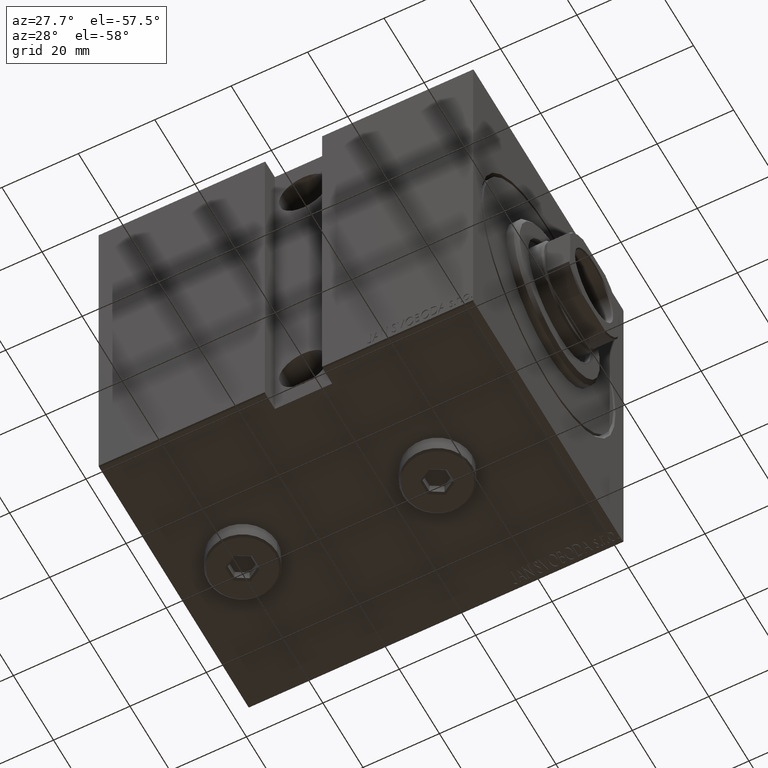
[diagram: clean part render]
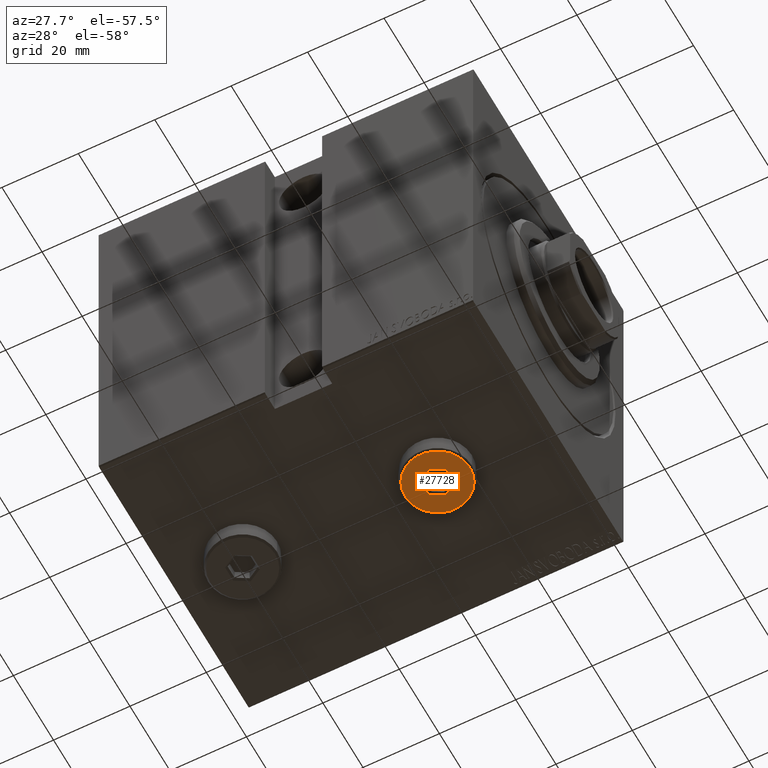
[diagram: same view with one face highlighted and labeled with its STEP entity id]
A machine part, auxiliary view. The second image highlights one B-rep face of the part: STEP entity #27728.
In plain terms, the highlighted planar face has unit normal (-0, 0, -1).
Its self-contained STEP definition (entity closure, byte-faithful):
#211 = PLANE ( 'NONE',  #32937 ) ;
#281 = VERTEX_POINT ( 'NONE', #33147 ) ;
#3119 = DIRECTION ( 'NONE',  ( 0.8660254037844387076, 0.4999999999999998335, 0.000000000000000000 ) ) ;
#4313 = LINE ( 'NONE', #14536, #5100 ) ;
#5007 = VERTEX_POINT ( 'NONE', #35517 ) ;
#5100 = VECTOR ( 'NONE', #7209, 1000.000000000000114 ) ;
#5459 = ORIENTED_EDGE ( 'NONE', *, *, #16527, .T. ) ;
#6886 = FACE_OUTER_BOUND ( 'NONE', #13103, .T. ) ;
#7067 = CARTESIAN_POINT ( 'NONE',  ( 3.500000000000006661, 2.020725942163694722, 5.000000000000000000 ) ) ;
#7209 = DIRECTION ( 'NONE',  ( -0.8660254037844385966, 0.4999999999999999445, 0.000000000000000000 ) ) ;
#7229 = EDGE_CURVE ( 'NONE', #12513, #42975, #39772, .T. ) ;
#9457 = CARTESIAN_POINT ( 'NONE',  ( 3.500000000000006661, -1.732050807568878303, 5.000000000000000000 ) ) ;
#9555 = CARTESIAN_POINT ( 'NONE',  ( -3.500000000000006661, 1.732050807568878081, 5.000000000000000000 ) ) ;
#9757 = VECTOR ( 'NONE', #25487, 1000.000000000000000 ) ;
#9883 = CIRCLE ( 'NONE', #15558, 8.500000000000010658 ) ;
#10011 = FACE_BOUND ( 'NONE', #37625, .T. ) ;
#10451 = CARTESIAN_POINT ( 'NONE',  ( 0.000000000000000000, 0.000000000000000000, 5.000000000000000000 ) ) ;
#12298 = ORIENTED_EDGE ( 'NONE', *, *, #7229, .T. ) ;
#12308 = DIRECTION ( 'NONE',  ( 1.000000000000000000, 0.000000000000000000, 0.000000000000000000 ) ) ;
#12513 = VERTEX_POINT ( 'NONE', #7067 ) ;
#12631 = LINE ( 'NONE', #19309, #37105 ) ;
#13103 = EDGE_LOOP ( 'NONE', ( #42780, #5459 ) ) ;
#13438 = VERTEX_POINT ( 'NONE', #20711 ) ;
#13657 = DIRECTION ( 'NONE',  ( 1.000000000000000000, 0.000000000000000000, 0.000000000000000000 ) ) ;
#14536 = CARTESIAN_POINT ( 'NONE',  ( -3.250000000000003109, -2.165063509461102598, 5.000000000000000000 ) ) ;
#14908 = VERTEX_POINT ( 'NONE', #41554 ) ;
#15342 = LINE ( 'NONE', #9555, #30552 ) ;
#15558 = AXIS2_PLACEMENT_3D ( 'NONE', #23242, #29937, #13657 ) ;
#16527 = EDGE_CURVE ( 'NONE', #13438, #5007, #9883, .T. ) ;
#16539 = LINE ( 'NONE', #22787, #36651 ) ;
#16564 = ORIENTED_EDGE ( 'NONE', *, *, #41645, .T. ) ;
#18792 = EDGE_CURVE ( 'NONE', #14908, #35757, #15342, .T. ) ;
#19309 = CARTESIAN_POINT ( 'NONE',  ( 3.250000000000003109, 2.165063509461103042, 5.000000000000000000 ) ) ;
#19765 = EDGE_CURVE ( 'NONE', #35757, #281, #34495, .T. ) ;
#20608 = EDGE_CURVE ( 'NONE', #5007, #13438, #24865, .T. ) ;
#20681 = DIRECTION ( 'NONE',  ( 1.000000000000000000, 0.000000000000000000, -0.000000000000000000 ) ) ;
#20711 = CARTESIAN_POINT ( 'NONE',  ( 8.500000000000010658, 1.071565949253934716E-15, 5.000000000000000000 ) ) ;
#20888 = CARTESIAN_POINT ( 'NONE',  ( -0.2500000000000027756, 3.897114317029978459, 5.000000000000000000 ) ) ;
#21716 = ORIENTED_EDGE ( 'NONE', *, *, #19765, .T. ) ;
#21816 = ORIENTED_EDGE ( 'NONE', *, *, #24726, .T. ) ;
#22787 = CARTESIAN_POINT ( 'NONE',  ( 0.2500000000000027756, -3.897114317029979347, 5.000000000000000000 ) ) ;
#23242 = CARTESIAN_POINT ( 'NONE',  ( 0.000000000000000000, 0.000000000000000000, 5.000000000000000000 ) ) ;
#24019 = DIRECTION ( 'NONE',  ( 0.000000000000000000, 0.000000000000000000, 1.000000000000000000 ) ) ;
#24225 = EDGE_CURVE ( 'NONE', #281, #12513, #12631, .T. ) ;
#24726 = EDGE_CURVE ( 'NONE', #31293, #14908, #4313, .T. ) ;
#24865 = CIRCLE ( 'NONE', #31300, 8.500000000000010658 ) ;
#25079 = CARTESIAN_POINT ( 'NONE',  ( -1.006139216460143630E-15, -4.041451884327387667, 5.000000000000000000 ) ) ;
#25487 = DIRECTION ( 'NONE',  ( 0.000000000000000000, -1.000000000000000000, 0.000000000000000000 ) ) ;
#25661 = DIRECTION ( 'NONE',  ( 0.000000000000000000, 0.000000000000000000, 1.000000000000000000 ) ) ;
#27728 = ADVANCED_FACE ( 'NONE', ( #10011, #6886 ), #211, .T. ) ;
#29113 = DIRECTION ( 'NONE',  ( 0.8660254037844387076, -0.4999999999999998890, 0.000000000000000000 ) ) ;
#29937 = DIRECTION ( 'NONE',  ( 0.000000000000000000, 0.000000000000000000, 1.000000000000000000 ) ) ;
#30552 = VECTOR ( 'NONE', #42547, 1000.000000000000000 ) ;
#30911 = CARTESIAN_POINT ( 'NONE',  ( -3.500000000000006661, 2.020725942163692945, 5.000000000000000000 ) ) ;
#31293 = VERTEX_POINT ( 'NONE', #25079 ) ;
#31300 = AXIS2_PLACEMENT_3D ( 'NONE', #42845, #25661, #12308 ) ;
#32937 = AXIS2_PLACEMENT_3D ( 'NONE', #10451, #24019, #20681 ) ;
#33147 = CARTESIAN_POINT ( 'NONE',  ( 1.590596867181068292E-15, 4.041451884327386779, 5.000000000000000000 ) ) ;
#33453 = VECTOR ( 'NONE', #3119, 1000.000000000000000 ) ;
#34495 = LINE ( 'NONE', #20888, #33453 ) ;
#35517 = CARTESIAN_POINT ( 'NONE',  ( -8.500000000000010658, 0.000000000000000000, 5.000000000000000000 ) ) ;
#35757 = VERTEX_POINT ( 'NONE', #30911 ) ;
#36651 = VECTOR ( 'NONE', #43522, 1000.000000000000000 ) ;
#37105 = VECTOR ( 'NONE', #29113, 1000.000000000000000 ) ;
#37625 = EDGE_LOOP ( 'NONE', ( #41769, #21716, #38315, #12298, #16564, #21816 ) ) ;
#38315 = ORIENTED_EDGE ( 'NONE', *, *, #24225, .T. ) ;
#39772 = LINE ( 'NONE', #9457, #9757 ) ;
#41554 = CARTESIAN_POINT ( 'NONE',  ( -3.500000000000006661, -2.020725942163694278, 5.000000000000000000 ) ) ;
#41645 = EDGE_CURVE ( 'NONE', #42975, #31293, #16539, .T. ) ;
#41769 = ORIENTED_EDGE ( 'NONE', *, *, #18792, .T. ) ;
#42547 = DIRECTION ( 'NONE',  ( 0.000000000000000000, 1.000000000000000000, 0.000000000000000000 ) ) ;
#42780 = ORIENTED_EDGE ( 'NONE', *, *, #20608, .T. ) ;
#42845 = CARTESIAN_POINT ( 'NONE',  ( 0.000000000000000000, 0.000000000000000000, 5.000000000000000000 ) ) ;
#42975 = VERTEX_POINT ( 'NONE', #43079 ) ;
#43079 = CARTESIAN_POINT ( 'NONE',  ( 3.500000000000006661, -2.020725942163693833, 5.000000000000000000 ) ) ;
#43522 = DIRECTION ( 'NONE',  ( -0.8660254037844387076, -0.4999999999999998890, 0.000000000000000000 ) ) ;